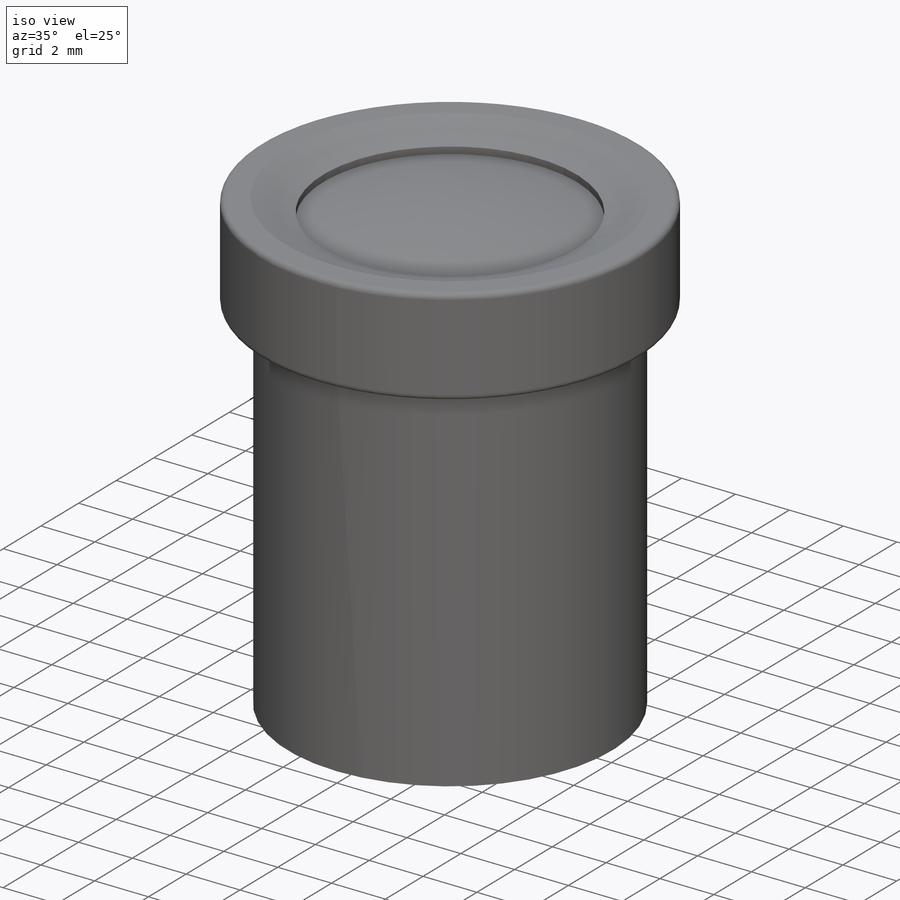
[diagram: iso view]
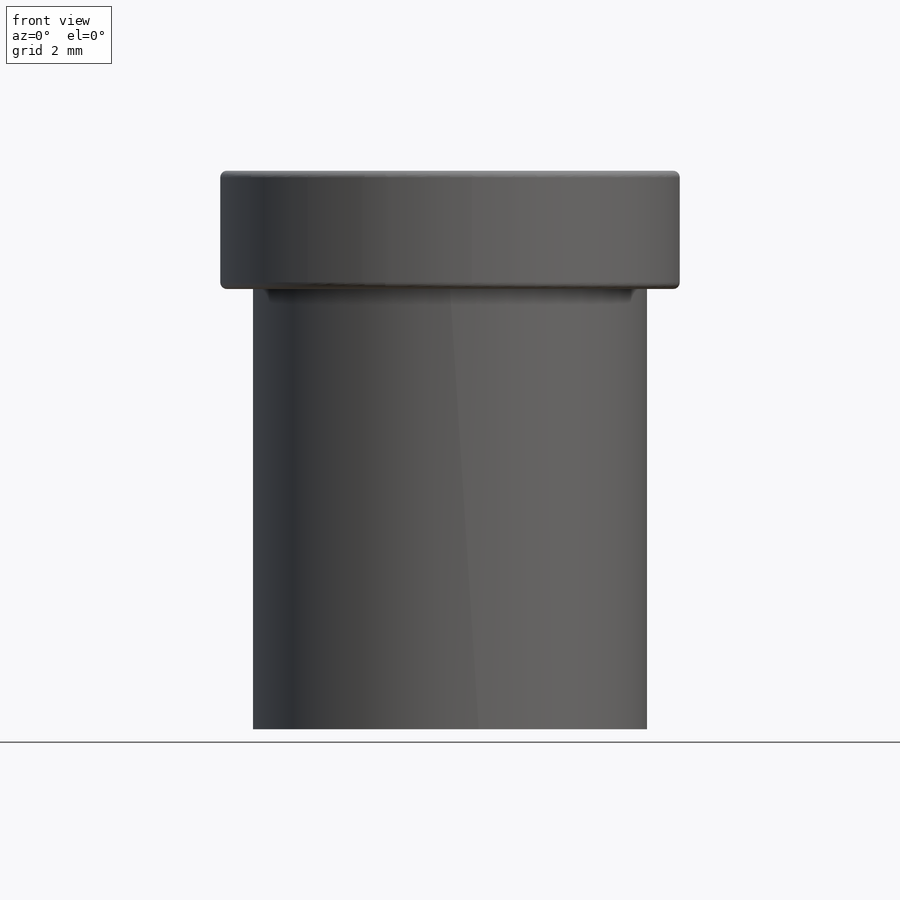
[diagram: front view]
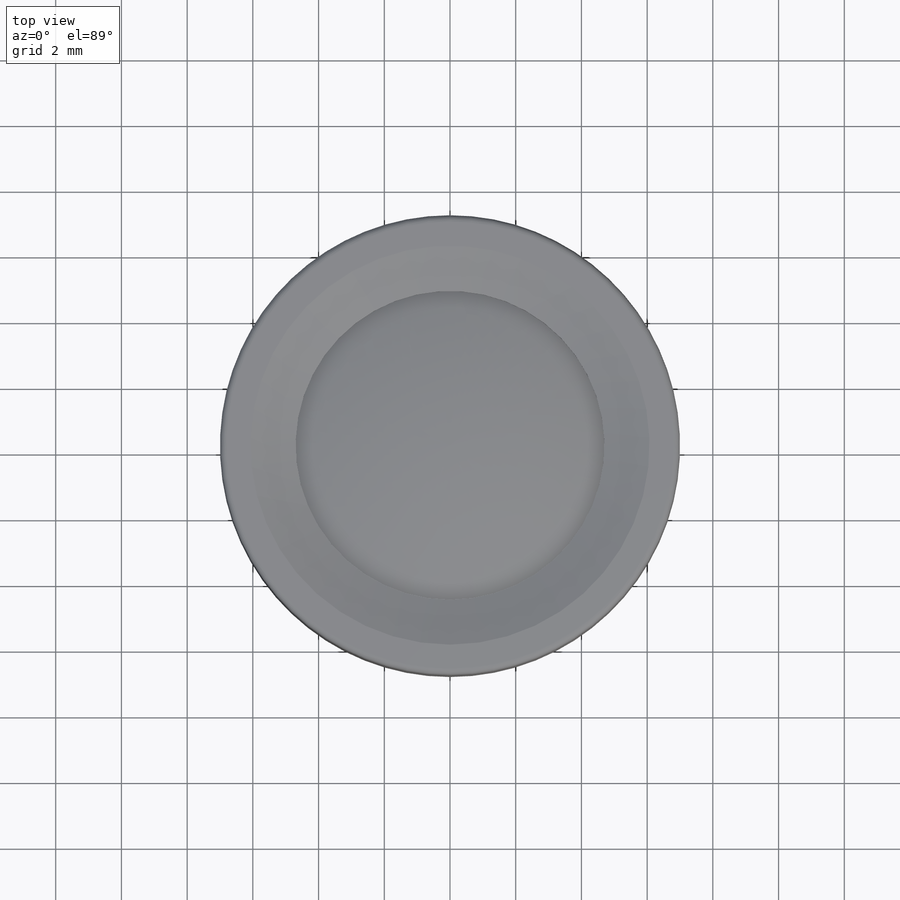
[diagram: top view]
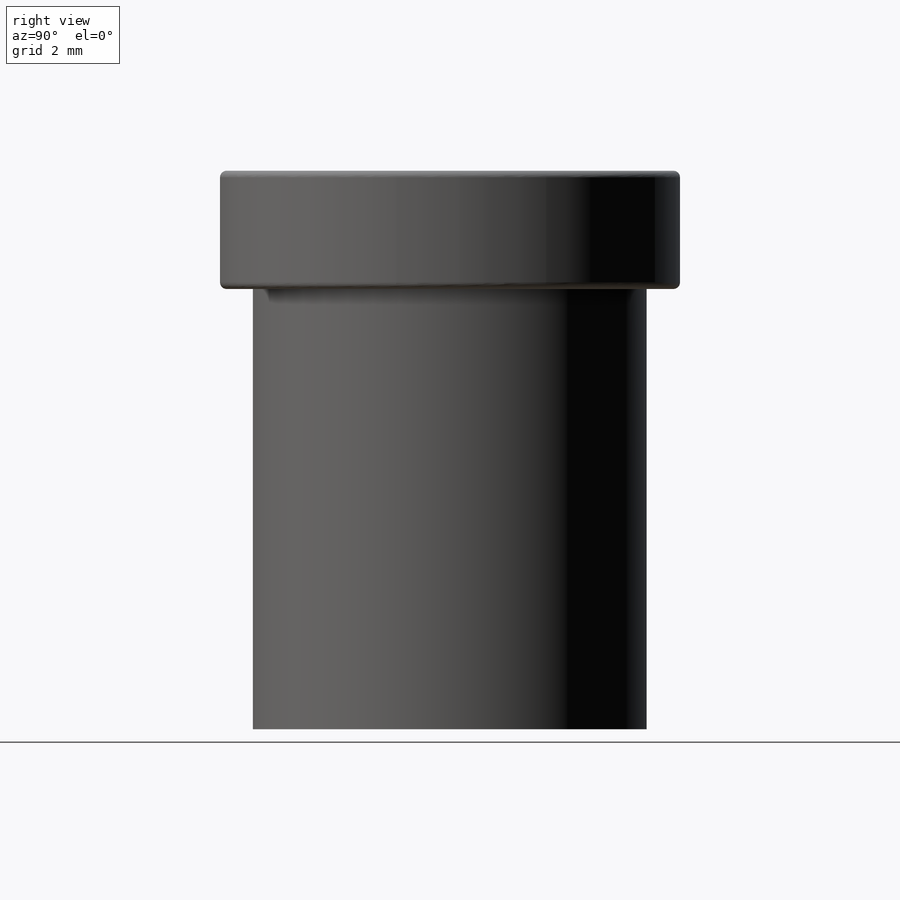
[diagram: right view]
SOLIDWORKS PART (.sldprt)
format: sldprt  version: not decoded by parser v0  size: 363,008 bytes
history: native  units: mm
features: sketch x3, revolve x2, fillet x2, material x1 (+12 scaffold rows collapsed)
feature tree (20):
  scaffold x12  (default folders/planes/origin — collapsed)
  material  "Material <not specified>"
  sketch  "Sketch1"  dims[D1=6.0mm D2=17.0mm D3=3.6mm D4=7.0mm D5=2.3mm D6=0.1mm D7=0.75mm D8=0.5mm D9=70.0deg]
  sketch  "Sketch2"  dims[D1=1.0mm D2=2.0mm D3=3.0mm D4=2.0mm D5=3.0mm]
  revolve  "Revolve1"  Angle=360deg
  sketch  "Sketch3"  dims[D1=1.0mm D2=2.0mm D3=0.3mm]
  revolve  "Revolve2"  Angle=360deg
  fillet  "Fillet1"  Radius=0.2mm
  fillet  "Fillet2"  Radius=0.2mm
decode coverage: 7 of 7 modeling features carry decoded parameters
note: suppression state not decoded; provenance and decode notes live in map.json
